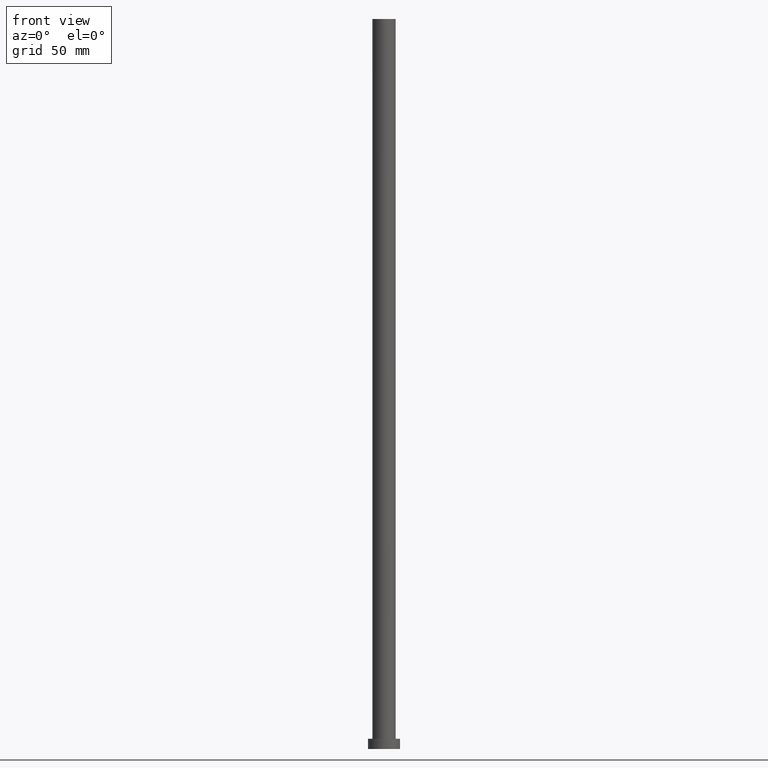
[diagram: clean part render]
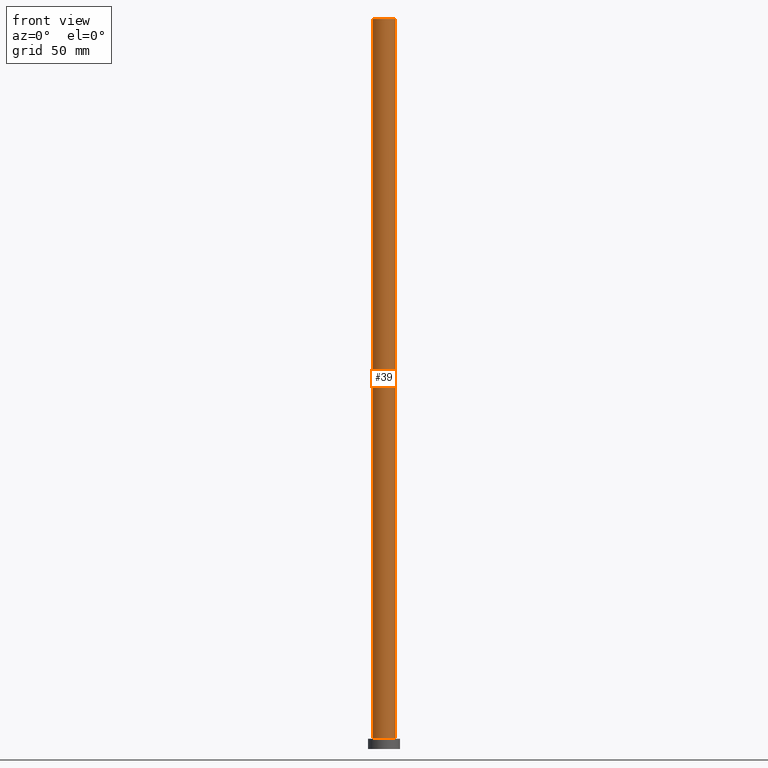
[diagram: same view with one face highlighted and labeled with its STEP entity id]
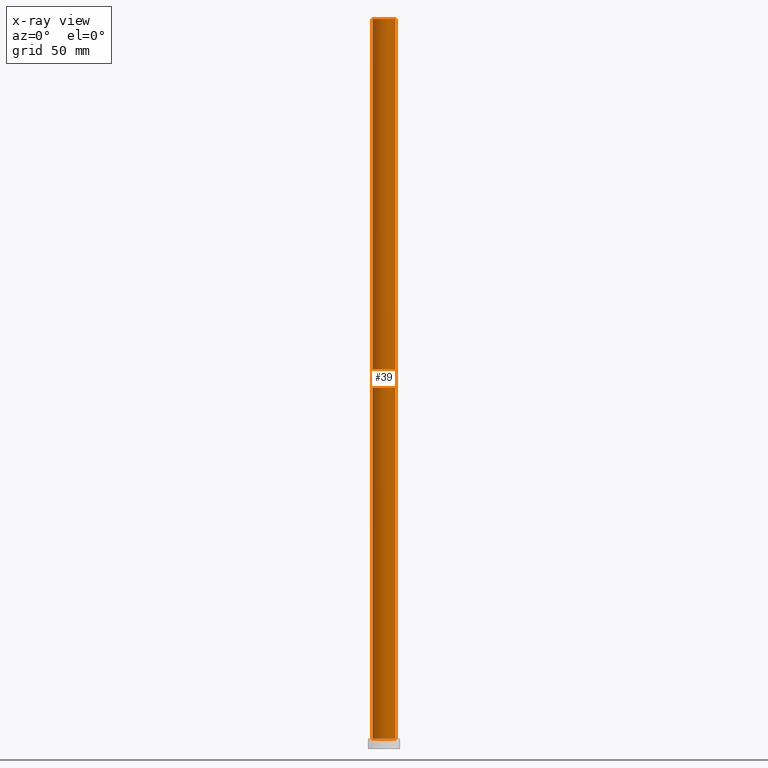
[diagram: x-ray of the same camera — body ghosted, the highlighted face saturated]
A machine part, front view. The second image highlights one B-rep face of the part: STEP entity #39.
The next image is the same camera in x-ray: the body ghosted, the highlighted face saturated — about 0% of this face is hidden behind the body in this view.
In plain terms, the highlighted cylindrical surface (edge-blend (fillet) strip) has radius 8 mm, axis along (-0, -0, -1).
Its self-contained STEP definition (entity closure, byte-faithful):
#7 = CARTESIAN_POINT ( 'NONE',  ( 8.000000000000000000, 9.797174393178825657E-16, 7.000000000000000000 ) ) ;
#10 = ORIENTED_EDGE ( 'NONE', *, *, #193, .F. ) ;
#28 = AXIS2_PLACEMENT_3D ( 'NONE', #48, #196, #55 ) ;
#34 = DIRECTION ( 'NONE',  ( -1.000000000000000000, 0.000000000000000000, 0.000000000000000000 ) ) ;
#36 = DIRECTION ( 'NONE',  ( 1.000000000000000000, 0.000000000000000000, 0.000000000000000000 ) ) ;
#39 = ADVANCED_FACE ( 'NONE', ( #148 ), #245, .T. ) ;
#43 = VERTEX_POINT ( 'NONE', #128 ) ;
#44 = CARTESIAN_POINT ( 'NONE',  ( -8.000000000000000000, 0.000000000000000000, 500.0000000000000000 ) ) ;
#48 = CARTESIAN_POINT ( 'NONE',  ( 0.000000000000000000, 0.000000000000000000, 500.0000000000000000 ) ) ;
#50 = CIRCLE ( 'NONE', #147, 8.000000000000000000 ) ;
#54 = CARTESIAN_POINT ( 'NONE',  ( 0.000000000000000000, 0.000000000000000000, 500.0000000000000000 ) ) ;
#55 = DIRECTION ( 'NONE',  ( 1.000000000000000000, 0.000000000000000000, 0.000000000000000000 ) ) ;
#70 = EDGE_LOOP ( 'NONE', ( #111, #10, #229, #140 ) ) ;
#74 = VECTOR ( 'NONE', #107, 1000.000000000000000 ) ;
#77 = EDGE_CURVE ( 'NONE', #43, #127, #164, .T. ) ;
#84 = AXIS2_PLACEMENT_3D ( 'NONE', #54, #187, #34 ) ;
#86 = DIRECTION ( 'NONE',  ( -0.000000000000000000, -0.000000000000000000, -1.000000000000000000 ) ) ;
#107 = DIRECTION ( 'NONE',  ( -0.000000000000000000, -0.000000000000000000, -1.000000000000000000 ) ) ;
#111 = ORIENTED_EDGE ( 'NONE', *, *, #177, .F. ) ;
#125 = CIRCLE ( 'NONE', #28, 8.000000000000000000 ) ;
#127 = VERTEX_POINT ( 'NONE', #186 ) ;
#128 = CARTESIAN_POINT ( 'NONE',  ( -8.000000000000000000, 0.000000000000000000, 500.0000000000000000 ) ) ;
#131 = LINE ( 'NONE', #249, #74 ) ;
#140 = ORIENTED_EDGE ( 'NONE', *, *, #225, .T. ) ;
#144 = VERTEX_POINT ( 'NONE', #7 ) ;
#147 = AXIS2_PLACEMENT_3D ( 'NONE', #252, #155, #36 ) ;
#148 = FACE_OUTER_BOUND ( 'NONE', #70, .T. ) ;
#154 = CARTESIAN_POINT ( 'NONE',  ( 8.000000000000000000, 9.797174393178825657E-16, 500.0000000000000000 ) ) ;
#155 = DIRECTION ( 'NONE',  ( 0.000000000000000000, 0.000000000000000000, 1.000000000000000000 ) ) ;
#164 = LINE ( 'NONE', #44, #180 ) ;
#177 = EDGE_CURVE ( 'NONE', #218, #144, #131, .T. ) ;
#180 = VECTOR ( 'NONE', #86, 1000.000000000000000 ) ;
#186 = CARTESIAN_POINT ( 'NONE',  ( -8.000000000000000000, 0.000000000000000000, 7.000000000000000000 ) ) ;
#187 = DIRECTION ( 'NONE',  ( -0.000000000000000000, -0.000000000000000000, -1.000000000000000000 ) ) ;
#193 = EDGE_CURVE ( 'NONE', #43, #218, #125, .T. ) ;
#196 = DIRECTION ( 'NONE',  ( 0.000000000000000000, 0.000000000000000000, 1.000000000000000000 ) ) ;
#218 = VERTEX_POINT ( 'NONE', #154 ) ;
#225 = EDGE_CURVE ( 'NONE', #127, #144, #50, .T. ) ;
#229 = ORIENTED_EDGE ( 'NONE', *, *, #77, .T. ) ;
#245 = CYLINDRICAL_SURFACE ( 'NONE', #84, 8.000000000000000000 ) ;
#249 = CARTESIAN_POINT ( 'NONE',  ( 8.000000000000000000, 9.797174393178825657E-16, 500.0000000000000000 ) ) ;
#252 = CARTESIAN_POINT ( 'NONE',  ( 0.000000000000000000, 0.000000000000000000, 7.000000000000000000 ) ) ;